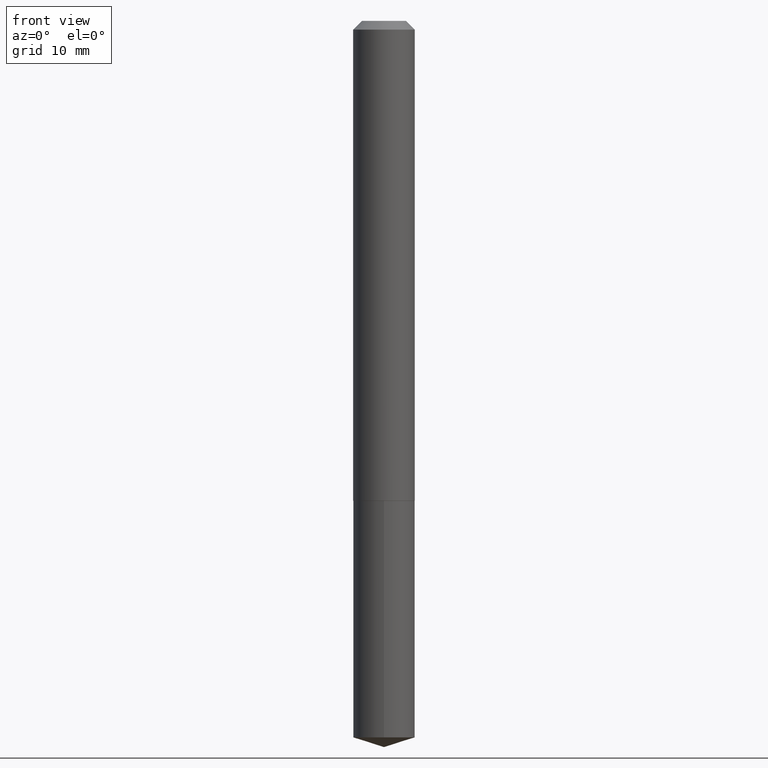
[diagram: clean part render]
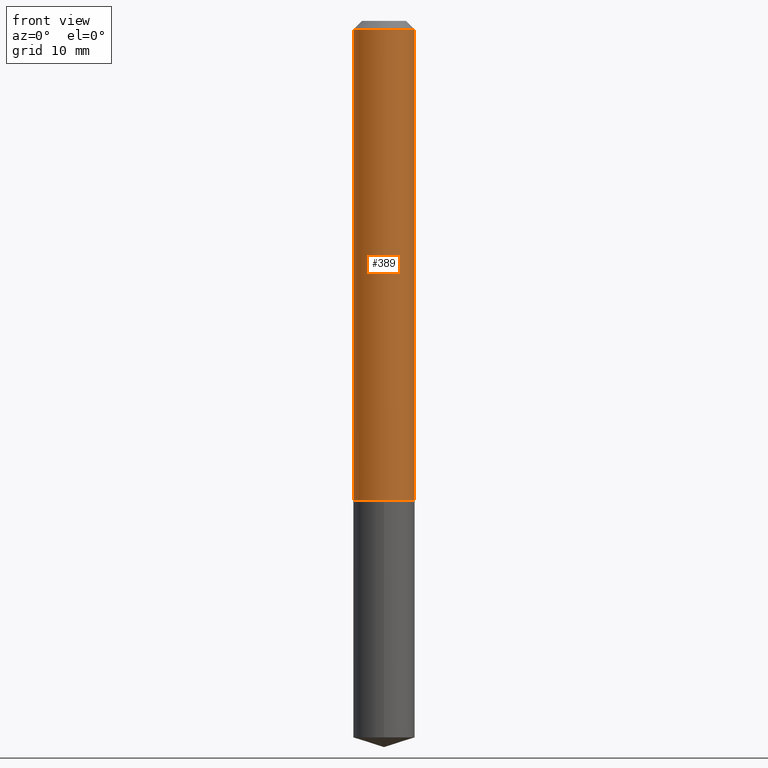
[diagram: same view with one face highlighted and labeled with its STEP entity id]
A machine part, front view. The second image highlights one B-rep face of the part: STEP entity #389.
In plain terms, the highlighted cylindrical surface (edge-blend (fillet) strip) has radius 2.8004 mm, axis along (-0, 0, 1).
Its self-contained STEP definition (entity closure, byte-faithful):
#26 = ORIENTED_EDGE ( 'NONE', *, *, #131, .T. ) ;
#33 = VERTEX_POINT ( 'NONE', #130 ) ;
#62 = DIRECTION ( 'NONE',  ( -2.445468806185136597E-29, 3.491481338843145583E-15, 1.000000000000000000 ) ) ;
#74 = DIRECTION ( 'NONE',  ( -2.445468806185136877E-29, 3.491481338843145188E-15, 1.000000000000000000 ) ) ;
#75 = CARTESIAN_POINT ( 'NONE',  ( -0.1102500000000001118, 7.833733661755112493E-16, -5.423125937006039074E-30 ) ) ;
#76 = VECTOR ( 'NONE', #322, 39.37007874015748143 ) ;
#83 = VERTEX_POINT ( 'NONE', #246 ) ;
#85 = FACE_OUTER_BOUND ( 'NONE', #146, .T. ) ;
#95 = VERTEX_POINT ( 'NONE', #198 ) ;
#100 = LINE ( 'NONE', #230, #200 ) ;
#124 = ORIENTED_EDGE ( 'NONE', *, *, #300, .F. ) ;
#130 = CARTESIAN_POINT ( 'NONE',  ( 0.1102500000000002089, -6.761253612669749957E-15, -1.715999999999999970 ) ) ;
#131 = EDGE_CURVE ( 'NONE', #83, #33, #285, .T. ) ;
#136 = CIRCLE ( 'NONE', #286, 0.1102500000000000008 ) ;
#144 = AXIS2_PLACEMENT_3D ( 'NONE', #245, #62, #186 ) ;
#146 = EDGE_LOOP ( 'NONE', ( #124, #26, #313, #242 ) ) ;
#180 = EDGE_CURVE ( 'NONE', #95, #386, #136, .T. ) ;
#184 = CARTESIAN_POINT ( 'NONE',  ( 0.1102500000000000008, -8.789804270537599818E-16, -0.03125000000000021511 ) ) ;
#186 = DIRECTION ( 'NONE',  ( 1.000000000000000000, -6.982962677686265133E-15, 0.000000000000000000 ) ) ;
#198 = CARTESIAN_POINT ( 'NONE',  ( -0.1102500000000000008, -2.266872018471330867E-15, -0.03125000000000021511 ) ) ;
#200 = VECTOR ( 'NONE', #74, 39.37007874015748143 ) ;
#209 = CYLINDRICAL_SURFACE ( 'NONE', #250, 0.1102500000000001118 ) ;
#230 = CARTESIAN_POINT ( 'NONE',  ( 0.1102500000000001118, -7.698716352149116700E-16, 5.375984895315024509E-30 ) ) ;
#238 = DIRECTION ( 'NONE',  ( 1.000000000000000000, -6.982962677686266711E-15, 0.000000000000000000 ) ) ;
#242 = ORIENTED_EDGE ( 'NONE', *, *, #180, .F. ) ;
#245 = CARTESIAN_POINT ( 'NONE',  ( 4.196424471413694799E-29, -5.991381977454837695E-15, -1.715999999999999970 ) ) ;
#246 = CARTESIAN_POINT ( 'NONE',  ( -0.1102500000000002089, -5.208008611279325953E-15, -1.715999999999999970 ) ) ;
#250 = AXIS2_PLACEMENT_3D ( 'NONE', #299, #388, #365 ) ;
#285 = CIRCLE ( 'NONE', #144, 0.1102500000000002089 ) ;
#286 = AXIS2_PLACEMENT_3D ( 'NONE', #381, #351, #238 ) ;
#299 = CARTESIAN_POINT ( 'NONE',  ( 0.000000000000000000, 0.000000000000000000, 0.000000000000000000 ) ) ;
#300 = EDGE_CURVE ( 'NONE', #83, #95, #347, .T. ) ;
#313 = ORIENTED_EDGE ( 'NONE', *, *, #353, .T. ) ;
#322 = DIRECTION ( 'NONE',  ( -2.445468806185136877E-29, 3.491481338843145188E-15, 1.000000000000000000 ) ) ;
#347 = LINE ( 'NONE', #75, #76 ) ;
#351 = DIRECTION ( 'NONE',  ( -2.445468806185136597E-29, 3.491481338843145583E-15, 1.000000000000000000 ) ) ;
#353 = EDGE_CURVE ( 'NONE', #33, #386, #100, .T. ) ;
#365 = DIRECTION ( 'NONE',  ( 1.000000000000000000, -6.982962677686266711E-15, 4.876176775795935793E-29 ) ) ;
#381 = CARTESIAN_POINT ( 'NONE',  ( 7.642090019328603538E-31, -1.091087918388490390E-16, -0.03125000000000021511 ) ) ;
#386 = VERTEX_POINT ( 'NONE', #184 ) ;
#388 = DIRECTION ( 'NONE',  ( -2.445468806185136597E-29, 3.491481338843145583E-15, 1.000000000000000000 ) ) ;
#389 = ADVANCED_FACE ( 'NONE', ( #85 ), #209, .T. ) ;